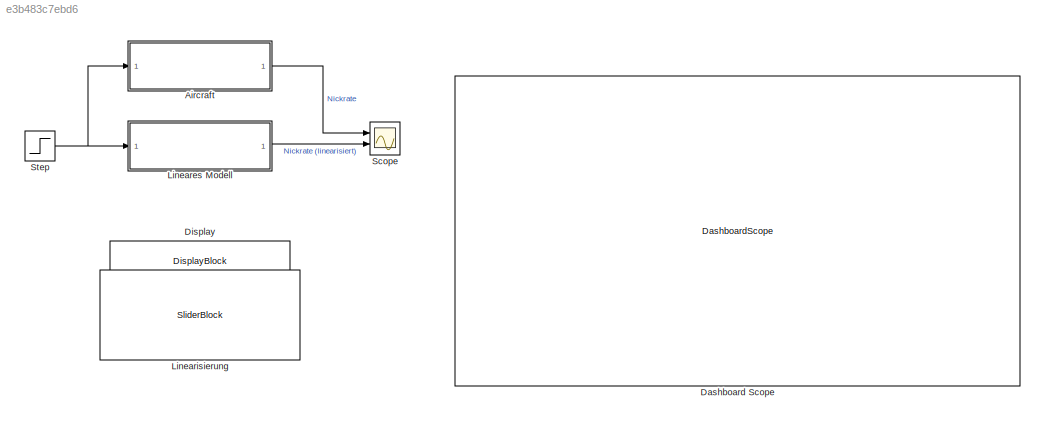
MODEL slx_e3b483c7ebd6
KIND model
CONFIG AbsTol = auto
CONFIG EnableMultiTasking = off
CONFIG FixedStep = auto
CONFIG MaxStep = auto
CONFIG MinStep = auto
CONFIG RelTol = 1e-3
CONFIG SampleTimeConstraint = Unconstrained
CONFIG SolverName = VariableStepAuto
CONFIG StartTime = 0.0
CONFIG StopTime = 5
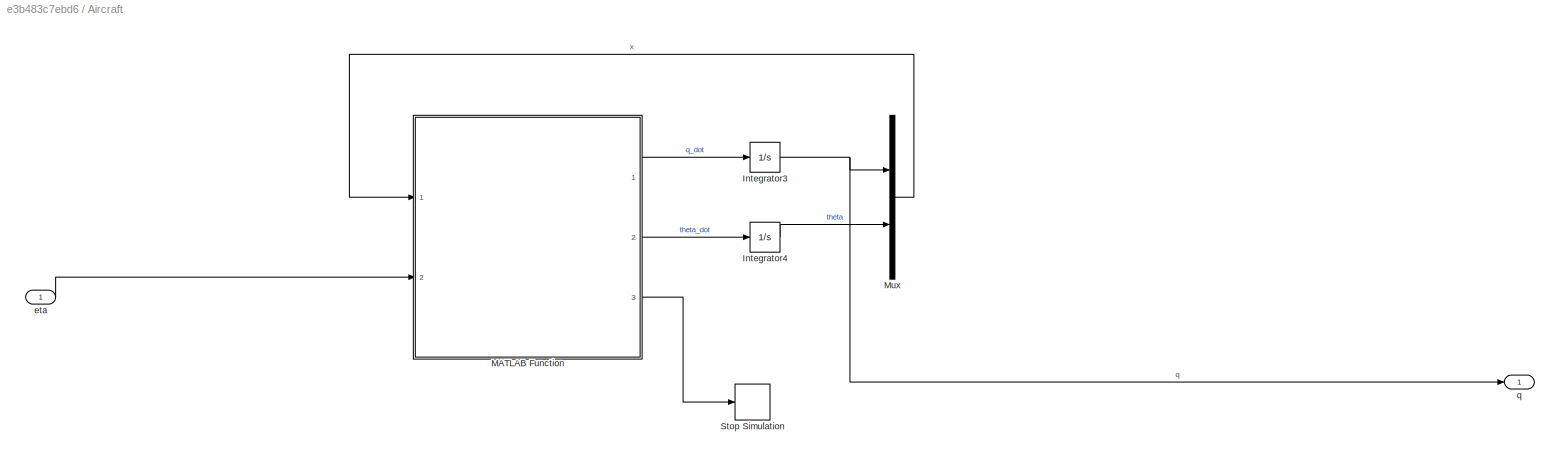
BLOCK [SubSystem] Aircraft
  Ports = [1, 1]
  RequestExecContextInheritance = off
BLOCK [Integrator] Aircraft/Integrator3
  Ports = [1, 1]
BLOCK [Integrator] Aircraft/Integrator4
  InitialCondition = 0.049807151144250
  Ports = [1, 1]
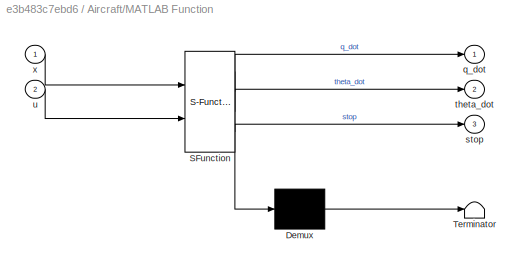
BLOCK [SubSystem] Aircraft/MATLAB Function
  ErrorFcn = Stateflow.Translate.translate
  PermitHierarchicalResolution = ExplicitOnly
  Ports = [2, 3]
  RequestExecContextInheritance = off
  SFBlockType = MATLAB Function
  TreatAsAtomicUnit = on
BLOCK [Demux] Aircraft/MATLAB Function/ Demux 
  Outputs = 1
  Ports = [1, 1]
BLOCK [S-Function] Aircraft/MATLAB Function/ SFunction 
  EnableBusSupport = on
  FunctionName = sf_sfun
  PortCounts = [2 4]
  Ports = [2, 4]
  SFcnIsStateOwnerBlock = off
  SFunctionDeploymentMode = off
  Tag = Stateflow S-Function 2
BLOCK [Terminator] Aircraft/MATLAB Function/ Terminator 
BLOCK [Outport] Aircraft/MATLAB Function/q_dot
BLOCK [Outport] Aircraft/MATLAB Function/stop
  Port = 3
BLOCK [Outport] Aircraft/MATLAB Function/theta_dot
  Port = 2
BLOCK [Inport] Aircraft/MATLAB Function/u
  Port = 2
BLOCK [Inport] Aircraft/MATLAB Function/x
BLOCK [Mux] Aircraft/Mux
  DisplayOption = bar
  Inputs = 2
  Ports = [2, 1]
BLOCK [Stop] Aircraft/Stop Simulation
BLOCK [Inport] Aircraft/eta
BLOCK [Outport] Aircraft/q
BLOCK [DashboardScope] Dashboard Scope
BLOCK [DisplayBlock] Display
  Format = Custom
  FormatString = CMq = %.4g
  LabelPosition = Hide
  Transparency = 1
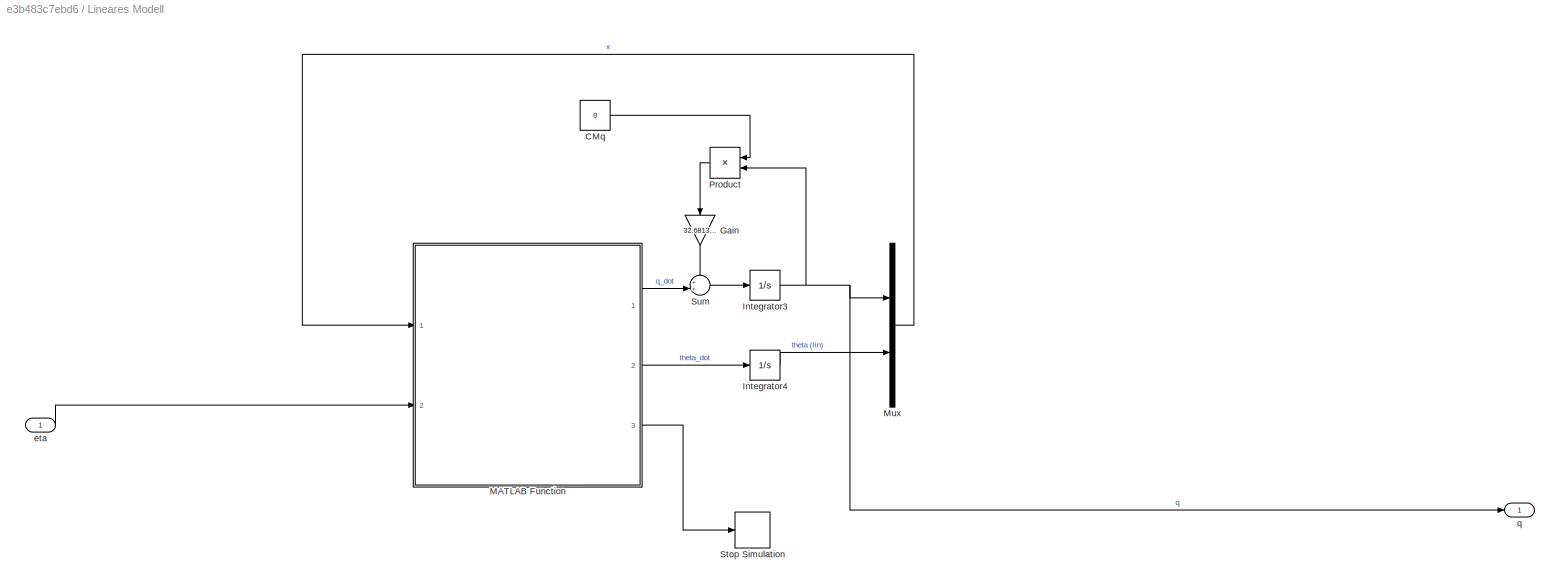
BLOCK [SubSystem] Lineares Modell
  Ports = [1, 1]
  RequestExecContextInheritance = off
BLOCK [Constant] Lineares Modell/CMq
  Value = 0
BLOCK [Gain] Lineares Modell/Gain
  Gain = 32.6813112863
  NameLocation = left
BLOCK [Integrator] Lineares Modell/Integrator3
  Ports = [1, 1]
BLOCK [Integrator] Lineares Modell/Integrator4
  InitialCondition = 0.049807151144250
  Ports = [1, 1]
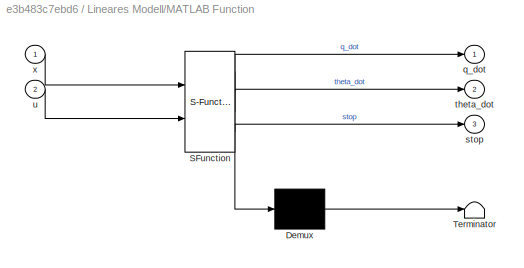
BLOCK [SubSystem] Lineares Modell/MATLAB Function
  ErrorFcn = Stateflow.Translate.translate
  PermitHierarchicalResolution = ExplicitOnly
  Ports = [2, 3]
  RequestExecContextInheritance = off
  SFBlockType = MATLAB Function
  TreatAsAtomicUnit = on
BLOCK [Demux] Lineares Modell/MATLAB Function/ Demux 
  Outputs = 1
  Ports = [1, 1]
BLOCK [S-Function] Lineares Modell/MATLAB Function/ SFunction 
  EnableBusSupport = on
  FunctionName = sf_sfun
  PortCounts = [2 4]
  Ports = [2, 4]
  SFcnIsStateOwnerBlock = off
  SFunctionDeploymentMode = off
  Tag = Stateflow S-Function 1
BLOCK [Terminator] Lineares Modell/MATLAB Function/ Terminator 
BLOCK [Outport] Lineares Modell/MATLAB Function/q_dot
BLOCK [Outport] Lineares Modell/MATLAB Function/stop
  Port = 3
BLOCK [Outport] Lineares Modell/MATLAB Function/theta_dot
  Port = 2
BLOCK [Inport] Lineares Modell/MATLAB Function/u
  Port = 2
BLOCK [Inport] Lineares Modell/MATLAB Function/x
BLOCK [Mux] Lineares Modell/Mux
  DisplayOption = bar
  Inputs = 2
  Ports = [2, 1]
BLOCK [Product] Lineares Modell/Product
  Ports = [2, 1]
BLOCK [Stop] Lineares Modell/Stop Simulation
BLOCK [Sum] Lineares Modell/Sum
  Inputs = ++|
  Ports = [2, 1]
BLOCK [Inport] Lineares Modell/eta
BLOCK [Outport] Lineares Modell/q
BLOCK [SliderBlock] Linearisierung
  LabelPosition = Hide
  ScaleMax = .2
  ScaleMin = -.2
BLOCK [Scope] Scope
  Floating = off
  NumInputPorts = 2
  Ports = [2]
  ScopeSpecificationString = Simulink.scopes.TimeScopeBlockCfg('CurrentConfiguration', extmgr.ConfigurationSet(extmgr.Configuration('Core','General UI',true),extmgr.Configuration('Core','Source UI',true),extmgr.Configuration('Sources','WiredSimulink',true),extmgr.Configuration('Visuals','Time Domain',true),extmgr.Configuration('Tools','Plot Navigation',true),extmgr.Configuration('Tools','Measurements',true)),'Version','2022a'...<+1ch>
BLOCK [Step] Step
  After = 0.05
  SampleTime = 0
NET Aircraft/Integrator3:1 -> Aircraft/Mux:1, Aircraft/q:1
LINE Aircraft/Integrator4:1 -> Aircraft/Mux:2
LINE Aircraft/MATLAB Function:1 -> Aircraft/Integrator3:1
LINE Aircraft/MATLAB Function:2 -> Aircraft/Integrator4:1
LINE Aircraft/MATLAB Function:3 -> Aircraft/Stop Simulation:1
LINE Aircraft/Mux:1 -> Aircraft/MATLAB Function:1
LINE Aircraft/eta:1 -> Aircraft/MATLAB Function:2
LINE Aircraft:1 -> Scope:1
LINE Lineares Modell/CMq:1 -> Lineares Modell/Product:1
LINE Lineares Modell/Gain:1 -> Lineares Modell/Sum:1
NET Lineares Modell/Integrator3:1 -> Lineares Modell/Mux:1, Lineares Modell/Product:2, Lineares Modell/q:1
LINE Lineares Modell/Integrator4:1 -> Lineares Modell/Mux:2
LINE Lineares Modell/MATLAB Function:1 -> Lineares Modell/Sum:2
LINE Lineares Modell/MATLAB Function:2 -> Lineares Modell/Integrator4:1
LINE Lineares Modell/MATLAB Function:3 -> Lineares Modell/Stop Simulation:1
LINE Lineares Modell/Mux:1 -> Lineares Modell/MATLAB Function:1
LINE Lineares Modell/Product:1 -> Lineares Modell/Gain:1
LINE Lineares Modell/Sum:1 -> Lineares Modell/Integrator3:1
LINE Lineares Modell/eta:1 -> Lineares Modell/MATLAB Function:2
LINE Lineares Modell:1 -> Scope:2
NET Step:1 -> Aircraft:1, Lineares Modell:1
note: NET lines group one-source signal fan-out (src -> all destinations, sorted); 1:1 wires keep LINE
CHART Lineares Modell/MATLAB Function states=1 transitions=1
  STATE_LABEL 'eML_blk_kernel()'
  STATE_LABEL 'SCRIPT:\nfunction [q_dot, theta_dot, stop]= poly_short_dyn(x,u)\n\n\n\n% fixed trim values\ndelta0  = 14.33;   % percent\n            \n\n\neta_trim = 0.048920000000000;\nalpha_trim = 0.049807151144250;\n\nX = [44.872852763976020; x(2); x(1); x(2)];\nU = [u + eta_trim; delta0];\n\n\n\n%% Polynomial Dynamics\n% f1 = @(V,alpha,q,theta,eta,F) +1.233e-8*V.^4.*q.^2         + 4.853e-9.*alpha.^3.*F.^3    + 3.705e-5*V.^3.*a...<+3608ch>'
CHART Aircraft/MATLAB Function states=1 transitions=1
  STATE_LABEL 'eML_blk_kernel()'
  STATE_LABEL 'SCRIPT:\nfunction [q_dot, theta_dot, stop]= poly_short_dyn(x,u)\n\n\n\n% fixed trim values\ndelta0  = 14.33;   % percent\n            \n\n\neta_trim = 0.048920000000000;\n\nX = [44.872852763976020; x(2); x(1); x(2)];\nU = [u + eta_trim; delta0];\n\n\n\n%% Polynomial Dynamics\n% f1 = @(V,alpha,q,theta,eta,F) +1.233e-8*V.^4.*q.^2         + 4.853e-9.*alpha.^3.*F.^3    + 3.705e-5*V.^3.*alpha.*q      ...\n%              ...<+3608ch>'
CHART  states=0 transitions=0
CHART  states=0 transitions=0
